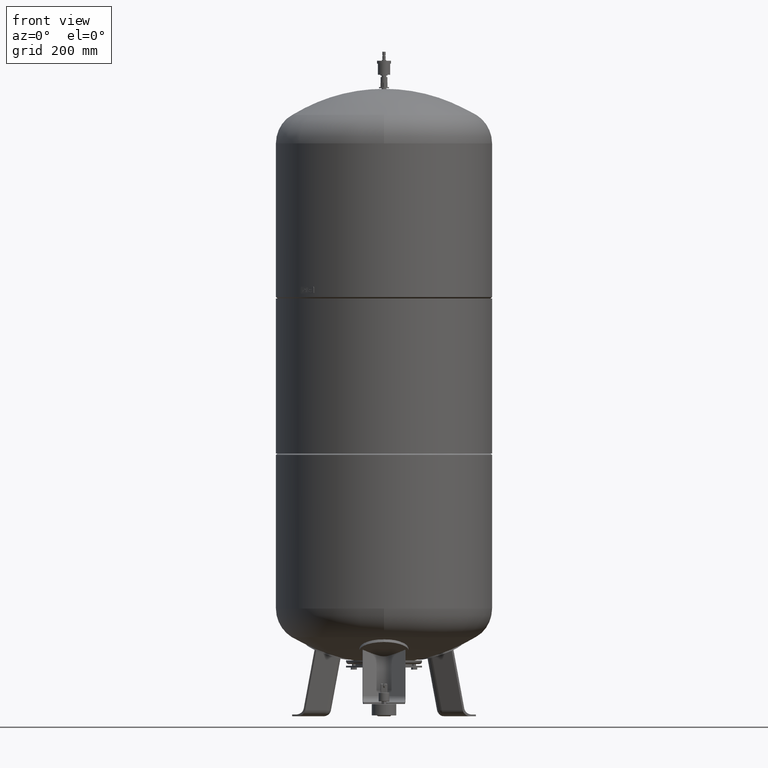
[diagram: clean part render]
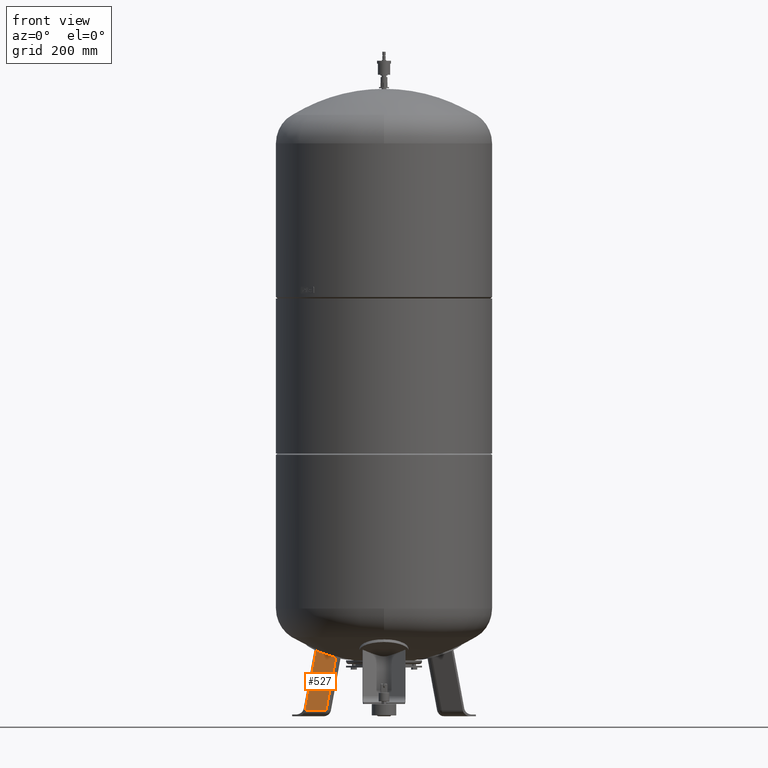
[diagram: same view with one face highlighted and labeled with its STEP entity id]
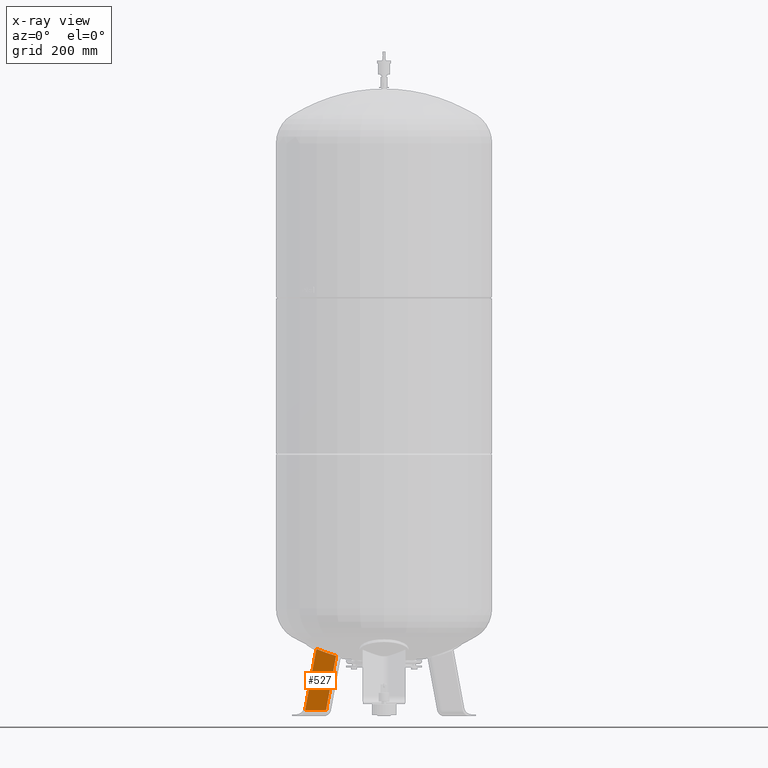
[diagram: x-ray of the same camera — body ghosted, the highlighted face saturated]
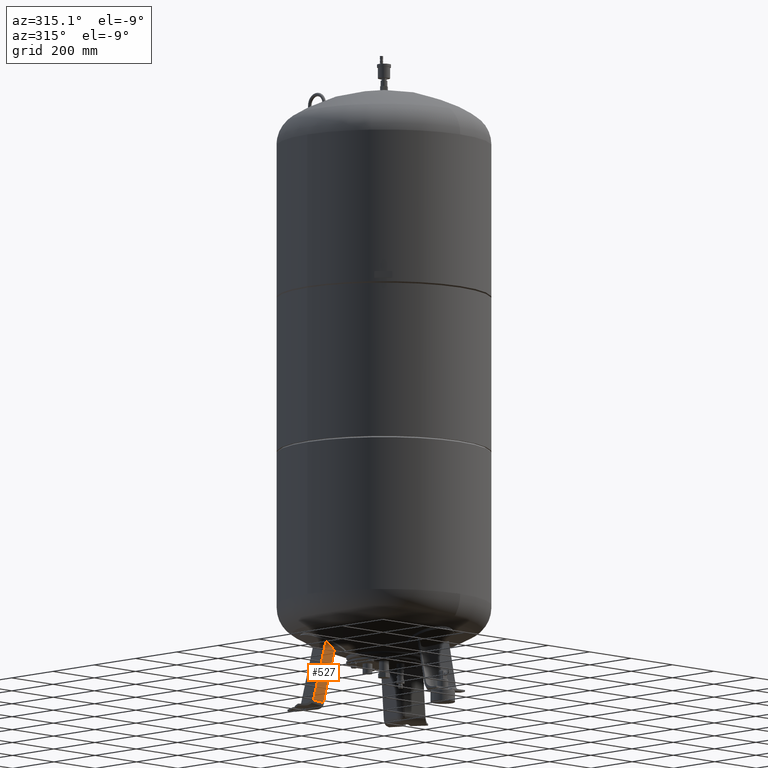
[diagram: same view with one face highlighted and labeled with its STEP entity id]
A machine part, front view. The second image highlights one B-rep face of the part: STEP entity #527.
The next image is the same camera in x-ray: the body ghosted, the highlighted face saturated — about 0% of this face is hidden behind the body in this view.
A second angle (auxiliary view) of the same face is appended — the face is thin or edge-on in the first view.
In plain terms, the highlighted planar face has unit normal (0.3243, -0.9325, -0.1588).
Its self-contained STEP definition (entity closure, byte-faithful):
#306=CARTESIAN_POINT('',(-198.135653734647060,95.760904562808207,21.029948423057281));
#307=VERTEX_POINT('',#306);
#374=CARTESIAN_POINT('',(-231.247438715379470,48.640281420860845,230.120878968208870));
#375=VERTEX_POINT('',#374);
#383=CARTESIAN_POINT('',(-164.009331508000910,76.058063238802134,206.419109493446830));
#384=VERTEX_POINT('',#383);
#385=CARTESIAN_POINT('',(-164.009331508000910,76.058063238802134,206.419109493446830));
#386=CARTESIAN_POINT('',(-167.296726295767710,74.749478270491409,207.390483448243740));
#387=CARTESIAN_POINT('',(-170.586376587281220,73.434638293147358,208.393982911335000));
#388=CARTESIAN_POINT('',(-180.606511789459150,69.414767171695388,211.538240111227370));
#389=CARTESIAN_POINT('',(-187.343946478440100,66.691476754780510,213.772030183208220));
#390=CARTESIAN_POINT('',(-206.481753689465560,58.903361117512489,220.425795489886210));
#391=CARTESIAN_POINT('',(-218.887273095988320,53.792416942164024,225.106085466333270));
#392=CARTESIAN_POINT('',(-231.247438715379470,48.640281420860845,230.120878968208870));
#393=B_SPLINE_CURVE_WITH_KNOTS('',3,(#385,#386,#387,#388,#389,#390,#391,#392),.UNSPECIFIED.,.F.,.U.,(4,2,2,4),(5.453253502265779,6.515864870681246,8.687819827574995,12.681292855444173),.UNSPECIFIED.);
#394=EDGE_CURVE('',#384,#375,#393,.T.);
#485=CARTESIAN_POINT('',(-164.009331508000910,76.058063238802134,206.419109493446830));
#486=DIRECTION('',(-0.180056805991956,0.103955845408880,-0.978147600733805));
#487=VECTOR('',#486,189.530865210230840);
#488=LINE('',#485,#487);
#489=EDGE_CURVE('',#384,#307,#488,.T.);
#504=CARTESIAN_POINT('',(-194.334005830255360,112.198790578796330,-67.735293817669458));
#505=DIRECTION('',(0.324282864533177,-0.932535537409927,-0.158802063077709));
#506=DIRECTION('',(-0.180056805991956,0.103955845408880,-0.978147600733806));
#507=AXIS2_PLACEMENT_3D('',#504,#505,#506);
#508=PLANE('',#507);
#509=CARTESIAN_POINT('',(-269.736768022737690,70.862106057392296,21.029948423057284));
#510=VERTEX_POINT('',#509);
#511=CARTESIAN_POINT('',(-269.736768022737690,70.862106057392296,21.029948423057284));
#512=DIRECTION('',(0.180056805991955,-0.103955845408880,0.978147600733806));
#513=VECTOR('',#512,213.762146314412800);
#514=LINE('',#511,#513);
#515=EDGE_CURVE('',#510,#375,#514,.T.);
#516=ORIENTED_EDGE('',*,*,#515,.F.);
#517=CARTESIAN_POINT('',(-198.135653734647060,95.760904562808207,21.029948423057281));
#518=DIRECTION('',(-0.944521094592691,-0.328450760190054,4.686537E-017));
#519=VECTOR('',#518,75.806792138366589);
#520=LINE('',#517,#519);
#521=EDGE_CURVE('',#307,#510,#520,.T.);
#522=ORIENTED_EDGE('',*,*,#521,.F.);
#523=ORIENTED_EDGE('',*,*,#489,.F.);
#524=ORIENTED_EDGE('',*,*,#394,.T.);
#525=EDGE_LOOP('',(#516,#522,#523,#524));
#526=FACE_OUTER_BOUND('',#525,.T.);
#527=ADVANCED_FACE('',(#526),#508,.T.);